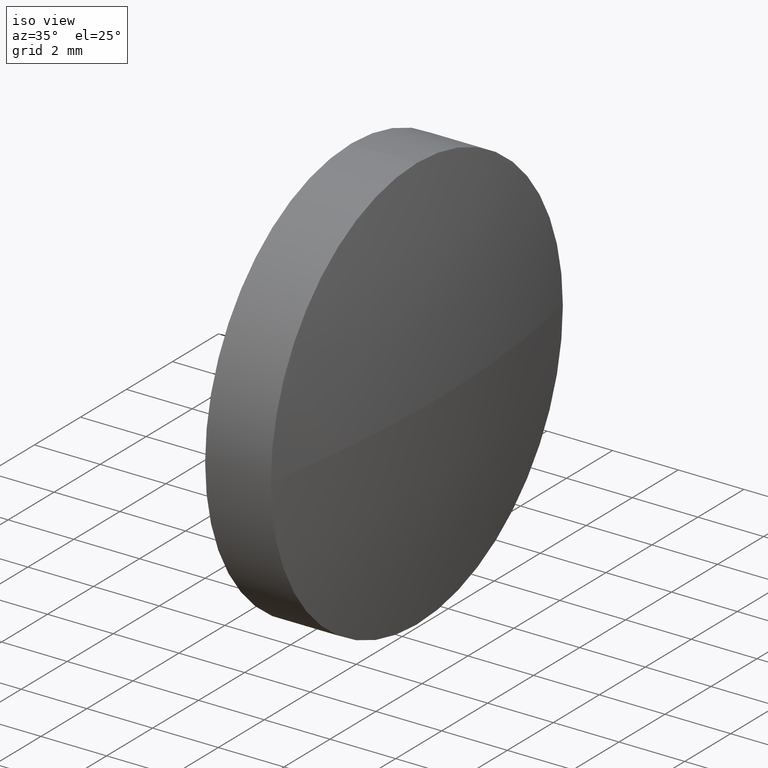
[diagram: clean part render]
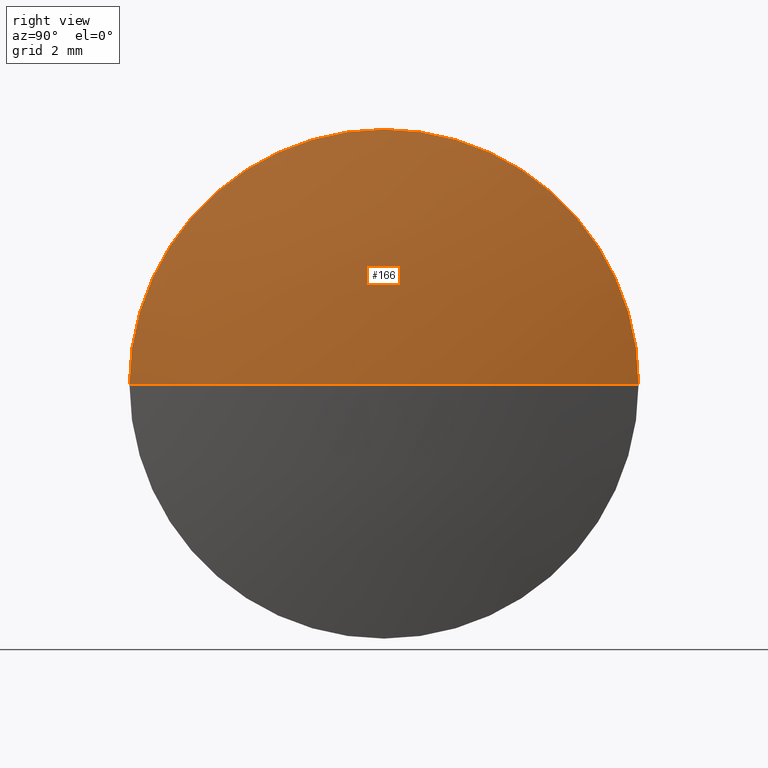
[diagram: tour spotlight — one face highlighted and labeled with its STEP entity id]
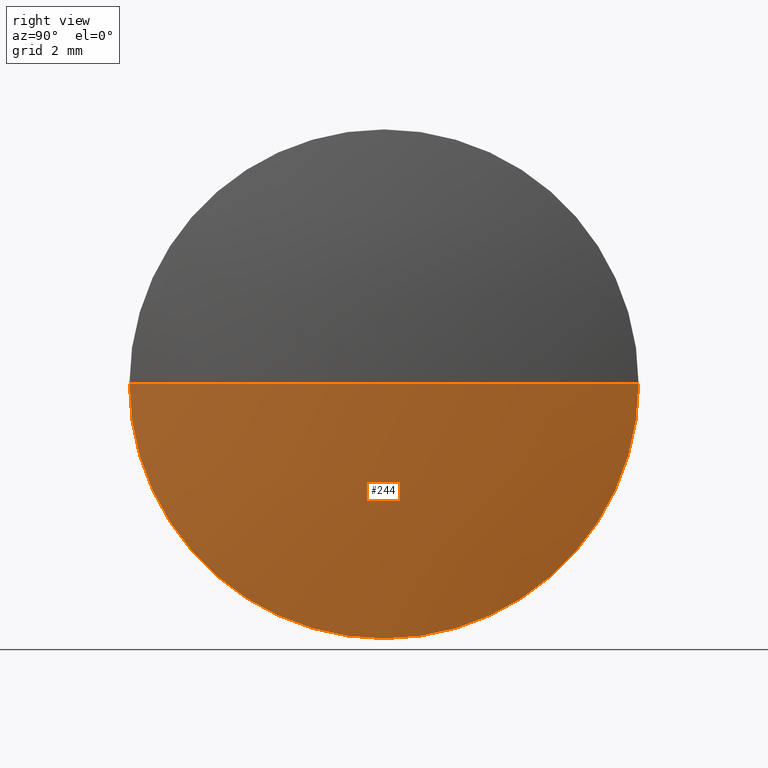
[diagram: tour spotlight — one face highlighted and labeled with its STEP entity id]
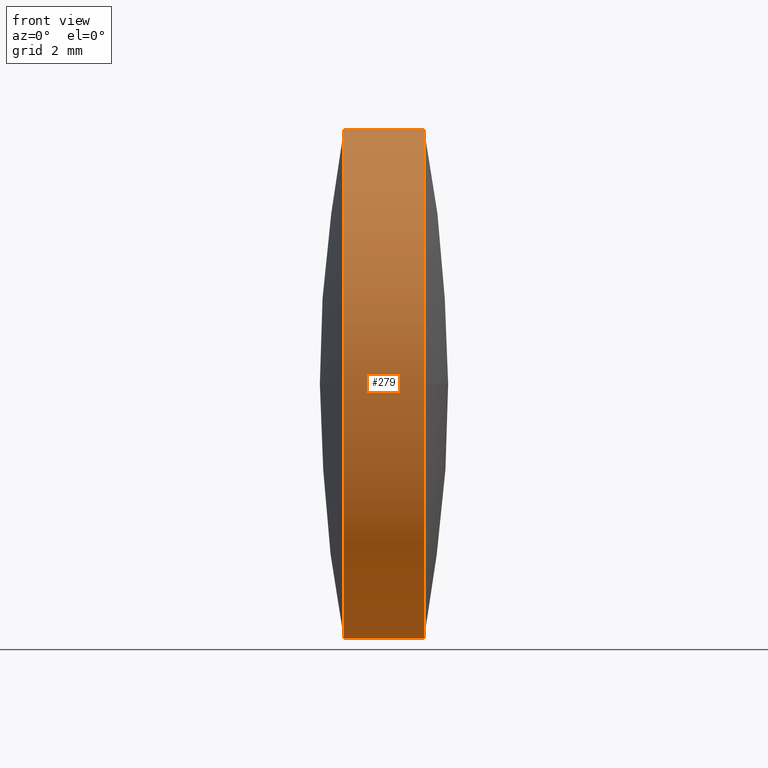
[diagram: tour spotlight — one face highlighted and labeled with its STEP entity id]
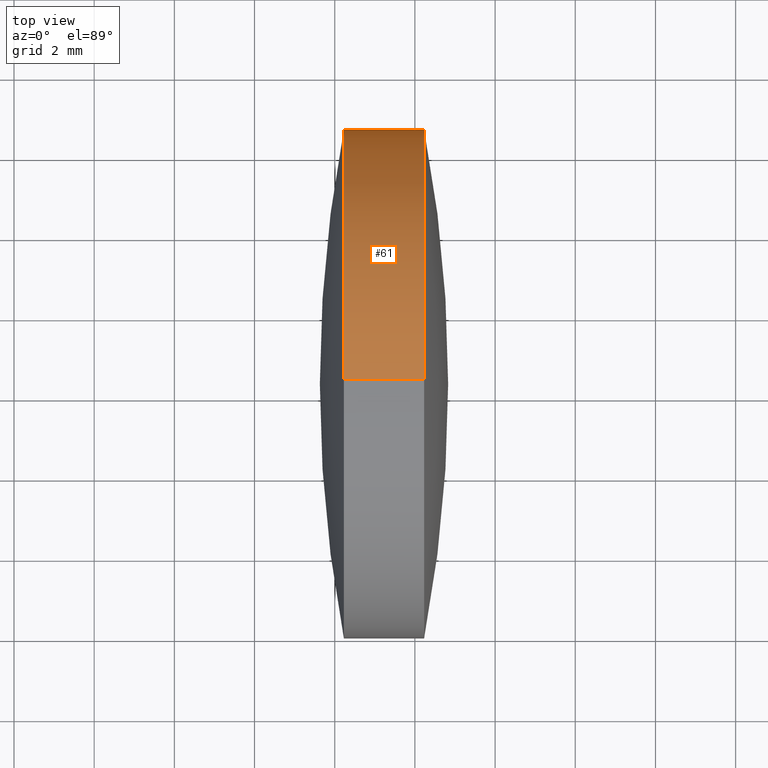
[diagram: tour spotlight — one face highlighted and labeled with its STEP entity id]
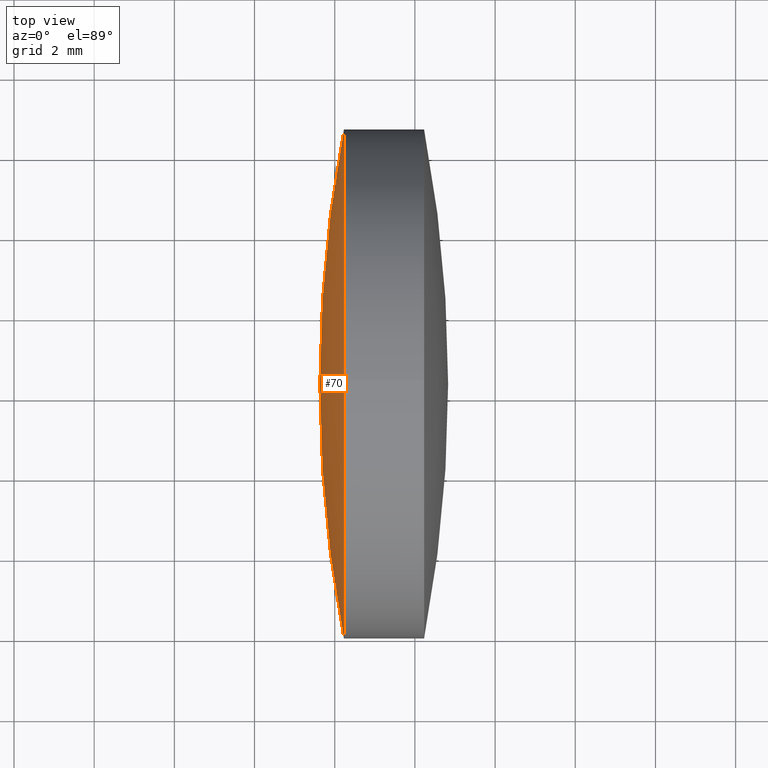
[diagram: tour spotlight — one face highlighted and labeled with its STEP entity id]
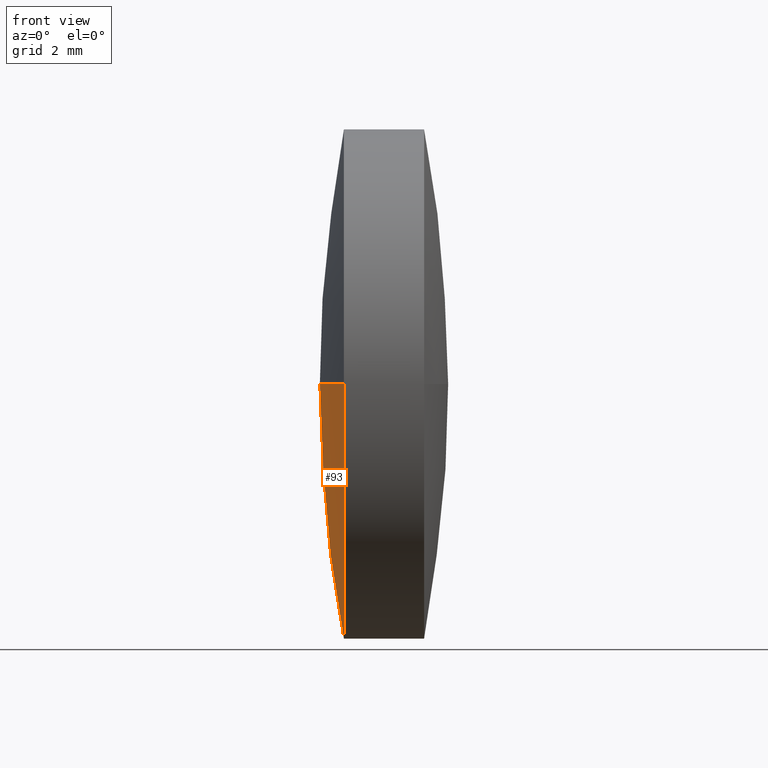
[diagram: tour spotlight — one face highlighted and labeled with its STEP entity id]
A machine part: a face-by-face anatomy tour. The part has 6 B-rep faces; the first image is the clean iso view, then the 6 largest visible faces are spotlighted one at a time (largest first), each with its STEP entity span.

Face 1 — right view, entity #166. In plain terms, the highlighted spherical surface has radius 33.905 mm.
Definition (entity closure, byte-faithful):
#9 = ORIENTED_EDGE ( 'NONE', *, *, #289, .F. ) ;
#17 = CIRCLE ( 'NONE', #52, 33.90496976629939500 ) ;
#27 = VERTEX_POINT ( 'NONE', #113 ) ;
#31 = EDGE_CURVE ( 'NONE', #219, #241, #183, .T. ) ;
#41 = AXIS2_PLACEMENT_3D ( 'NONE', #240, #268, #190 ) ;
#52 = AXIS2_PLACEMENT_3D ( 'NONE', #136, #86, #62 ) ;
#62 = DIRECTION ( 'NONE',  ( 0.0000000000000000000, -1.000000000000000000, -1.224646799147353000E-016 ) ) ;
#65 = DIRECTION ( 'NONE',  ( -1.000000000000000000, 0.0000000000000000000, 0.0000000000000000000 ) ) ;
#68 = CARTESIAN_POINT ( 'NONE',  ( 44.22913117304555200, 30.65805651159239200, 7.776507174585659600E-016 ) ) ;
#86 = DIRECTION ( 'NONE',  ( 0.0000000000000000000, -1.224646799147353200E-016, 1.000000000000000000 ) ) ;
#88 = CARTESIAN_POINT ( 'NONE',  ( 44.22913117304555200, 24.30805651159239000, 0.0000000000000000000 ) ) ;
#89 = CARTESIAN_POINT ( 'NONE',  ( 44.22913117304555200, 24.30805651159239000, 6.349999999999997900 ) ) ;
#90 = ORIENTED_EDGE ( 'NONE', *, *, #135, .T. ) ;
#113 = CARTESIAN_POINT ( 'NONE',  ( 44.82907917304555700, 24.30805651159241500, 0.0000000000000000000 ) ) ;
#127 = EDGE_LOOP ( 'NONE', ( #205, #90, #9, #246 ) ) ;
#135 = EDGE_CURVE ( 'NONE', #27, #201, #17, .T. ) ;
#136 = CARTESIAN_POINT ( 'NONE',  ( 10.92410940674616300, 24.30805651159241900, 0.0000000000000000000 ) ) ;
#144 = CIRCLE ( 'NONE', #203, 6.349999999999997900 ) ;
#155 = CIRCLE ( 'NONE', #299, 33.90496976629939500 ) ;
#166 = ADVANCED_FACE ( 'NONE', ( #290 ), #323, .T. ) ;
#183 = CIRCLE ( 'NONE', #41, 6.349999999999997900 ) ;
#190 = DIRECTION ( 'NONE',  ( 0.0000000000000000000, 0.0000000000000000000, 1.000000000000000000 ) ) ;
#201 = VERTEX_POINT ( 'NONE', #68 ) ;
#203 = AXIS2_PLACEMENT_3D ( 'NONE', #88, #248, #301 ) ;
#205 = ORIENTED_EDGE ( 'NONE', *, *, #343, .F. ) ;
#215 = CARTESIAN_POINT ( 'NONE',  ( 10.92410940674616300, 24.30805651159241900, 0.0000000000000000000 ) ) ;
#219 = VERTEX_POINT ( 'NONE', #303 ) ;
#240 = CARTESIAN_POINT ( 'NONE',  ( 44.22913117304555200, 24.30805651159239000, 0.0000000000000000000 ) ) ;
#241 = VERTEX_POINT ( 'NONE', #89 ) ;
#246 = ORIENTED_EDGE ( 'NONE', *, *, #31, .F. ) ;
#248 = DIRECTION ( 'NONE',  ( -1.000000000000000000, -0.0000000000000000000, -0.0000000000000000000 ) ) ;
#252 = CARTESIAN_POINT ( 'NONE',  ( 10.92410940674616300, 24.30805651159241900, 0.0000000000000000000 ) ) ;
#268 = DIRECTION ( 'NONE',  ( -1.000000000000000000, -0.0000000000000000000, -0.0000000000000000000 ) ) ;
#289 = EDGE_CURVE ( 'NONE', #241, #201, #144, .T. ) ;
#290 = FACE_OUTER_BOUND ( 'NONE', #127, .T. ) ;
#299 = AXIS2_PLACEMENT_3D ( 'NONE', #252, #304, #65 ) ;
#300 = DIRECTION ( 'NONE',  ( 0.0000000000000000000, 0.0000000000000000000, 1.000000000000000000 ) ) ;
#301 = DIRECTION ( 'NONE',  ( 0.0000000000000000000, 0.0000000000000000000, 1.000000000000000000 ) ) ;
#303 = CARTESIAN_POINT ( 'NONE',  ( 44.22913117304555200, 17.95805651159241700, 0.0000000000000000000 ) ) ;
#304 = DIRECTION ( 'NONE',  ( 0.0000000000000000000, 0.0000000000000000000, -1.000000000000000000 ) ) ;
#323 = SPHERICAL_SURFACE ( 'NONE', #328, 33.90496976629939500 ) ;
#328 = AXIS2_PLACEMENT_3D ( 'NONE', #215, #300, #334 ) ;
#334 = DIRECTION ( 'NONE',  ( 0.0000000000000000000, -1.000000000000000000, 0.0000000000000000000 ) ) ;
#343 = EDGE_CURVE ( 'NONE', #27, #219, #155, .T. ) ;

Face 2 — right view, entity #244. In plain terms, the highlighted spherical surface has radius 33.905 mm.
Definition (entity closure, byte-faithful):
#7 = DIRECTION ( 'NONE',  ( -1.000000000000000000, -0.0000000000000000000, -0.0000000000000000000 ) ) ;
#10 = FACE_OUTER_BOUND ( 'NONE', #42, .T. ) ;
#17 = CIRCLE ( 'NONE', #52, 33.90496976629939500 ) ;
#20 = ORIENTED_EDGE ( 'NONE', *, *, #343, .T. ) ;
#27 = VERTEX_POINT ( 'NONE', #113 ) ;
#42 = EDGE_LOOP ( 'NONE', ( #162, #20, #129, #184 ) ) ;
#52 = AXIS2_PLACEMENT_3D ( 'NONE', #136, #86, #62 ) ;
#62 = DIRECTION ( 'NONE',  ( 0.0000000000000000000, -1.000000000000000000, -1.224646799147353000E-016 ) ) ;
#65 = DIRECTION ( 'NONE',  ( -1.000000000000000000, 0.0000000000000000000, 0.0000000000000000000 ) ) ;
#68 = CARTESIAN_POINT ( 'NONE',  ( 44.22913117304555200, 30.65805651159239200, 7.776507174585659600E-016 ) ) ;
#80 = CIRCLE ( 'NONE', #192, 6.349999999999997900 ) ;
#86 = DIRECTION ( 'NONE',  ( 0.0000000000000000000, -1.224646799147353200E-016, 1.000000000000000000 ) ) ;
#96 = DIRECTION ( 'NONE',  ( 0.0000000000000000000, 0.0000000000000000000, 1.000000000000000000 ) ) ;
#108 = VERTEX_POINT ( 'NONE', #269 ) ;
#113 = CARTESIAN_POINT ( 'NONE',  ( 44.82907917304555700, 24.30805651159241500, 0.0000000000000000000 ) ) ;
#117 = DIRECTION ( 'NONE',  ( 0.0000000000000000000, 0.0000000000000000000, 1.000000000000000000 ) ) ;
#120 = AXIS2_PLACEMENT_3D ( 'NONE', #140, #168, #245 ) ;
#125 = AXIS2_PLACEMENT_3D ( 'NONE', #277, #117, #271 ) ;
#129 = ORIENTED_EDGE ( 'NONE', *, *, #311, .F. ) ;
#135 = EDGE_CURVE ( 'NONE', #27, #201, #17, .T. ) ;
#136 = CARTESIAN_POINT ( 'NONE',  ( 10.92410940674616300, 24.30805651159241900, 0.0000000000000000000 ) ) ;
#140 = CARTESIAN_POINT ( 'NONE',  ( 44.22913117304555200, 24.30805651159239000, 0.0000000000000000000 ) ) ;
#155 = CIRCLE ( 'NONE', #299, 33.90496976629939500 ) ;
#162 = ORIENTED_EDGE ( 'NONE', *, *, #135, .F. ) ;
#168 = DIRECTION ( 'NONE',  ( -1.000000000000000000, -0.0000000000000000000, -0.0000000000000000000 ) ) ;
#175 = CARTESIAN_POINT ( 'NONE',  ( 44.22913117304555200, 24.30805651159239000, 0.0000000000000000000 ) ) ;
#184 = ORIENTED_EDGE ( 'NONE', *, *, #280, .F. ) ;
#192 = AXIS2_PLACEMENT_3D ( 'NONE', #175, #7, #96 ) ;
#201 = VERTEX_POINT ( 'NONE', #68 ) ;
#211 = CIRCLE ( 'NONE', #120, 6.349999999999997900 ) ;
#219 = VERTEX_POINT ( 'NONE', #303 ) ;
#244 = ADVANCED_FACE ( 'NONE', ( #10 ), #292, .T. ) ;
#245 = DIRECTION ( 'NONE',  ( 0.0000000000000000000, 0.0000000000000000000, 1.000000000000000000 ) ) ;
#252 = CARTESIAN_POINT ( 'NONE',  ( 10.92410940674616300, 24.30805651159241900, 0.0000000000000000000 ) ) ;
#269 = CARTESIAN_POINT ( 'NONE',  ( 44.22913117304555200, 24.30805651159239000, -6.349999999999997900 ) ) ;
#271 = DIRECTION ( 'NONE',  ( 0.0000000000000000000, -1.000000000000000000, 0.0000000000000000000 ) ) ;
#277 = CARTESIAN_POINT ( 'NONE',  ( 10.92410940674616300, 24.30805651159241900, 0.0000000000000000000 ) ) ;
#280 = EDGE_CURVE ( 'NONE', #201, #108, #211, .T. ) ;
#292 = SPHERICAL_SURFACE ( 'NONE', #125, 33.90496976629939500 ) ;
#299 = AXIS2_PLACEMENT_3D ( 'NONE', #252, #304, #65 ) ;
#303 = CARTESIAN_POINT ( 'NONE',  ( 44.22913117304555200, 17.95805651159241700, 0.0000000000000000000 ) ) ;
#304 = DIRECTION ( 'NONE',  ( 0.0000000000000000000, 0.0000000000000000000, -1.000000000000000000 ) ) ;
#311 = EDGE_CURVE ( 'NONE', #108, #219, #80, .T. ) ;
#343 = EDGE_CURVE ( 'NONE', #27, #219, #155, .T. ) ;

Face 3 — front view, entity #279. In plain terms, the highlighted cylindrical surface (partial cylindrical patch) has radius 6.35 mm, axis along (-1, -0, -0).
Definition (entity closure, byte-faithful):
#2 = DIRECTION ( 'NONE',  ( -1.000000000000000000, -0.0000000000000000000, -0.0000000000000000000 ) ) ;
#4 = CARTESIAN_POINT ( 'NONE',  ( 42.22906260161698100, 24.30805651159239000, -6.349999999999997900 ) ) ;
#5 = EDGE_CURVE ( 'NONE', #108, #230, #272, .T. ) ;
#7 = DIRECTION ( 'NONE',  ( -1.000000000000000000, -0.0000000000000000000, -0.0000000000000000000 ) ) ;
#8 = CARTESIAN_POINT ( 'NONE',  ( 42.22906260161698100, 24.30805651159239000, 6.349999999999997900 ) ) ;
#11 = DIRECTION ( 'NONE',  ( -1.000000000000000000, -0.0000000000000000000, -0.0000000000000000000 ) ) ;
#24 = ORIENTED_EDGE ( 'NONE', *, *, #311, .T. ) ;
#25 = CIRCLE ( 'NONE', #260, 6.349999999999997900 ) ;
#31 = EDGE_CURVE ( 'NONE', #219, #241, #183, .T. ) ;
#36 = CARTESIAN_POINT ( 'NONE',  ( 42.22906260161698100, 24.30805651159239000, 0.0000000000000000000 ) ) ;
#41 = AXIS2_PLACEMENT_3D ( 'NONE', #240, #268, #190 ) ;
#47 = ORIENTED_EDGE ( 'NONE', *, *, #5, .F. ) ;
#57 = ORIENTED_EDGE ( 'NONE', *, *, #31, .T. ) ;
#80 = CIRCLE ( 'NONE', #192, 6.349999999999997900 ) ;
#81 = CARTESIAN_POINT ( 'NONE',  ( 39.65270067541857900, 24.30805651159239000, -6.349999999999997900 ) ) ;
#85 = CIRCLE ( 'NONE', #231, 6.349999999999997900 ) ;
#89 = CARTESIAN_POINT ( 'NONE',  ( 44.22913117304555200, 24.30805651159239000, 6.349999999999997900 ) ) ;
#94 = DIRECTION ( 'NONE',  ( 0.0000000000000000000, 0.0000000000000000000, 1.000000000000000000 ) ) ;
#96 = DIRECTION ( 'NONE',  ( 0.0000000000000000000, 0.0000000000000000000, 1.000000000000000000 ) ) ;
#100 = VECTOR ( 'NONE', #141, 1000.000000000000000 ) ;
#108 = VERTEX_POINT ( 'NONE', #269 ) ;
#115 = CARTESIAN_POINT ( 'NONE',  ( 39.65270067541857900, 24.30805651159239000, 6.349999999999997900 ) ) ;
#139 = CARTESIAN_POINT ( 'NONE',  ( 42.22906260161698100, 17.95805651159238200, -7.776507174585672400E-016 ) ) ;
#141 = DIRECTION ( 'NONE',  ( -1.000000000000000000, -0.0000000000000000000, -0.0000000000000000000 ) ) ;
#142 = ORIENTED_EDGE ( 'NONE', *, *, #161, .F. ) ;
#156 = AXIS2_PLACEMENT_3D ( 'NONE', #217, #173, #330 ) ;
#161 = EDGE_CURVE ( 'NONE', #182, #210, #85, .T. ) ;
#171 = CARTESIAN_POINT ( 'NONE',  ( 42.22906260161698100, 24.30805651159239000, 0.0000000000000000000 ) ) ;
#173 = DIRECTION ( 'NONE',  ( -1.000000000000000000, -0.0000000000000000000, -0.0000000000000000000 ) ) ;
#175 = CARTESIAN_POINT ( 'NONE',  ( 44.22913117304555200, 24.30805651159239000, 0.0000000000000000000 ) ) ;
#176 = EDGE_LOOP ( 'NONE', ( #47, #24, #57, #342, #142, #278 ) ) ;
#179 = LINE ( 'NONE', #115, #100 ) ;
#181 = EDGE_CURVE ( 'NONE', #241, #210, #179, .T. ) ;
#182 = VERTEX_POINT ( 'NONE', #139 ) ;
#183 = CIRCLE ( 'NONE', #41, 6.349999999999997900 ) ;
#190 = DIRECTION ( 'NONE',  ( 0.0000000000000000000, 0.0000000000000000000, 1.000000000000000000 ) ) ;
#192 = AXIS2_PLACEMENT_3D ( 'NONE', #175, #7, #96 ) ;
#210 = VERTEX_POINT ( 'NONE', #8 ) ;
#217 = CARTESIAN_POINT ( 'NONE',  ( 39.65270067541857900, 24.30805651159239000, 0.0000000000000000000 ) ) ;
#219 = VERTEX_POINT ( 'NONE', #303 ) ;
#230 = VERTEX_POINT ( 'NONE', #4 ) ;
#231 = AXIS2_PLACEMENT_3D ( 'NONE', #171, #247, #275 ) ;
#240 = CARTESIAN_POINT ( 'NONE',  ( 44.22913117304555200, 24.30805651159239000, 0.0000000000000000000 ) ) ;
#241 = VERTEX_POINT ( 'NONE', #89 ) ;
#247 = DIRECTION ( 'NONE',  ( -1.000000000000000000, -0.0000000000000000000, -0.0000000000000000000 ) ) ;
#260 = AXIS2_PLACEMENT_3D ( 'NONE', #36, #11, #94 ) ;
#268 = DIRECTION ( 'NONE',  ( -1.000000000000000000, -0.0000000000000000000, -0.0000000000000000000 ) ) ;
#269 = CARTESIAN_POINT ( 'NONE',  ( 44.22913117304555200, 24.30805651159239000, -6.349999999999997900 ) ) ;
#272 = LINE ( 'NONE', #81, #312 ) ;
#275 = DIRECTION ( 'NONE',  ( 0.0000000000000000000, 0.0000000000000000000, 1.000000000000000000 ) ) ;
#278 = ORIENTED_EDGE ( 'NONE', *, *, #318, .F. ) ;
#279 = ADVANCED_FACE ( 'NONE', ( #281 ), #287, .T. ) ;
#281 = FACE_OUTER_BOUND ( 'NONE', #176, .T. ) ;
#287 = CYLINDRICAL_SURFACE ( 'NONE', #156, 6.349999999999997900 ) ;
#303 = CARTESIAN_POINT ( 'NONE',  ( 44.22913117304555200, 17.95805651159241700, 0.0000000000000000000 ) ) ;
#311 = EDGE_CURVE ( 'NONE', #108, #219, #80, .T. ) ;
#312 = VECTOR ( 'NONE', #2, 1000.000000000000000 ) ;
#318 = EDGE_CURVE ( 'NONE', #230, #182, #25, .T. ) ;
#330 = DIRECTION ( 'NONE',  ( 0.0000000000000000000, 0.0000000000000000000, 1.000000000000000000 ) ) ;
#342 = ORIENTED_EDGE ( 'NONE', *, *, #181, .T. ) ;

Face 4 — top view, entity #61. In plain terms, the highlighted cylindrical surface (partial cylindrical patch) has radius 6.35 mm, axis along (-1, -0, -0).
Definition (entity closure, byte-faithful):
#2 = DIRECTION ( 'NONE',  ( -1.000000000000000000, -0.0000000000000000000, -0.0000000000000000000 ) ) ;
#4 = CARTESIAN_POINT ( 'NONE',  ( 42.22906260161698100, 24.30805651159239000, -6.349999999999997900 ) ) ;
#5 = EDGE_CURVE ( 'NONE', #108, #230, #272, .T. ) ;
#8 = CARTESIAN_POINT ( 'NONE',  ( 42.22906260161698100, 24.30805651159239000, 6.349999999999997900 ) ) ;
#22 = CIRCLE ( 'NONE', #119, 6.349999999999997900 ) ;
#30 = ORIENTED_EDGE ( 'NONE', *, *, #289, .T. ) ;
#53 = ORIENTED_EDGE ( 'NONE', *, *, #181, .F. ) ;
#58 = DIRECTION ( 'NONE',  ( -1.000000000000000000, -0.0000000000000000000, -0.0000000000000000000 ) ) ;
#61 = ADVANCED_FACE ( 'NONE', ( #232 ), #105, .T. ) ;
#68 = CARTESIAN_POINT ( 'NONE',  ( 44.22913117304555200, 30.65805651159239200, 7.776507174585659600E-016 ) ) ;
#81 = CARTESIAN_POINT ( 'NONE',  ( 39.65270067541857900, 24.30805651159239000, -6.349999999999997900 ) ) ;
#83 = AXIS2_PLACEMENT_3D ( 'NONE', #167, #111, #273 ) ;
#88 = CARTESIAN_POINT ( 'NONE',  ( 44.22913117304555200, 24.30805651159239000, 0.0000000000000000000 ) ) ;
#89 = CARTESIAN_POINT ( 'NONE',  ( 44.22913117304555200, 24.30805651159239000, 6.349999999999997900 ) ) ;
#92 = DIRECTION ( 'NONE',  ( 0.0000000000000000000, 0.0000000000000000000, 1.000000000000000000 ) ) ;
#99 = ORIENTED_EDGE ( 'NONE', *, *, #280, .T. ) ;
#100 = VECTOR ( 'NONE', #141, 1000.000000000000000 ) ;
#104 = ORIENTED_EDGE ( 'NONE', *, *, #5, .T. ) ;
#105 = CYLINDRICAL_SURFACE ( 'NONE', #213, 6.349999999999997900 ) ;
#108 = VERTEX_POINT ( 'NONE', #269 ) ;
#111 = DIRECTION ( 'NONE',  ( -1.000000000000000000, -0.0000000000000000000, -0.0000000000000000000 ) ) ;
#112 = ORIENTED_EDGE ( 'NONE', *, *, #187, .F. ) ;
#115 = CARTESIAN_POINT ( 'NONE',  ( 39.65270067541857900, 24.30805651159239000, 6.349999999999997900 ) ) ;
#119 = AXIS2_PLACEMENT_3D ( 'NONE', #249, #195, #92 ) ;
#120 = AXIS2_PLACEMENT_3D ( 'NONE', #140, #168, #245 ) ;
#133 = CARTESIAN_POINT ( 'NONE',  ( 39.65270067541857900, 24.30805651159239000, 0.0000000000000000000 ) ) ;
#140 = CARTESIAN_POINT ( 'NONE',  ( 44.22913117304555200, 24.30805651159239000, 0.0000000000000000000 ) ) ;
#141 = DIRECTION ( 'NONE',  ( -1.000000000000000000, -0.0000000000000000000, -0.0000000000000000000 ) ) ;
#144 = CIRCLE ( 'NONE', #203, 6.349999999999997900 ) ;
#147 = EDGE_CURVE ( 'NONE', #188, #230, #159, .T. ) ;
#159 = CIRCLE ( 'NONE', #83, 6.349999999999997900 ) ;
#167 = CARTESIAN_POINT ( 'NONE',  ( 42.22906260161698100, 24.30805651159239000, 0.0000000000000000000 ) ) ;
#168 = DIRECTION ( 'NONE',  ( -1.000000000000000000, -0.0000000000000000000, -0.0000000000000000000 ) ) ;
#179 = LINE ( 'NONE', #115, #100 ) ;
#181 = EDGE_CURVE ( 'NONE', #241, #210, #179, .T. ) ;
#187 = EDGE_CURVE ( 'NONE', #210, #188, #22, .T. ) ;
#188 = VERTEX_POINT ( 'NONE', #218 ) ;
#195 = DIRECTION ( 'NONE',  ( -1.000000000000000000, -0.0000000000000000000, -0.0000000000000000000 ) ) ;
#201 = VERTEX_POINT ( 'NONE', #68 ) ;
#203 = AXIS2_PLACEMENT_3D ( 'NONE', #88, #248, #301 ) ;
#210 = VERTEX_POINT ( 'NONE', #8 ) ;
#211 = CIRCLE ( 'NONE', #120, 6.349999999999997900 ) ;
#213 = AXIS2_PLACEMENT_3D ( 'NONE', #133, #58, #327 ) ;
#218 = CARTESIAN_POINT ( 'NONE',  ( 42.22906260161698100, 30.65805651159237400, 0.0000000000000000000 ) ) ;
#230 = VERTEX_POINT ( 'NONE', #4 ) ;
#232 = FACE_OUTER_BOUND ( 'NONE', #258, .T. ) ;
#241 = VERTEX_POINT ( 'NONE', #89 ) ;
#245 = DIRECTION ( 'NONE',  ( 0.0000000000000000000, 0.0000000000000000000, 1.000000000000000000 ) ) ;
#248 = DIRECTION ( 'NONE',  ( -1.000000000000000000, -0.0000000000000000000, -0.0000000000000000000 ) ) ;
#249 = CARTESIAN_POINT ( 'NONE',  ( 42.22906260161698100, 24.30805651159239000, 0.0000000000000000000 ) ) ;
#258 = EDGE_LOOP ( 'NONE', ( #99, #104, #325, #112, #53, #30 ) ) ;
#269 = CARTESIAN_POINT ( 'NONE',  ( 44.22913117304555200, 24.30805651159239000, -6.349999999999997900 ) ) ;
#272 = LINE ( 'NONE', #81, #312 ) ;
#273 = DIRECTION ( 'NONE',  ( 0.0000000000000000000, 0.0000000000000000000, 1.000000000000000000 ) ) ;
#280 = EDGE_CURVE ( 'NONE', #201, #108, #211, .T. ) ;
#289 = EDGE_CURVE ( 'NONE', #241, #201, #144, .T. ) ;
#301 = DIRECTION ( 'NONE',  ( 0.0000000000000000000, 0.0000000000000000000, 1.000000000000000000 ) ) ;
#312 = VECTOR ( 'NONE', #2, 1000.000000000000000 ) ;
#325 = ORIENTED_EDGE ( 'NONE', *, *, #147, .F. ) ;
#327 = DIRECTION ( 'NONE',  ( 0.0000000000000000000, 0.0000000000000000000, 1.000000000000000000 ) ) ;

Face 5 — top view, entity #70. In plain terms, the highlighted spherical surface has radius 33.905 mm.
Definition (entity closure, byte-faithful):
#1 = AXIS2_PLACEMENT_3D ( 'NONE', #329, #265, #82 ) ;
#8 = CARTESIAN_POINT ( 'NONE',  ( 42.22906260161698100, 24.30805651159239000, 6.349999999999997900 ) ) ;
#15 = EDGE_CURVE ( 'NONE', #182, #170, #63, .T. ) ;
#22 = CIRCLE ( 'NONE', #119, 6.349999999999997900 ) ;
#28 = DIRECTION ( 'NONE',  ( 0.0000000000000000000, 1.000000000000000000, 1.224646799147353000E-016 ) ) ;
#32 = DIRECTION ( 'NONE',  ( 1.000000000000000000, 0.0000000000000000000, 0.0000000000000000000 ) ) ;
#34 = CARTESIAN_POINT ( 'NONE',  ( 75.53408436791684700, 24.30805651159236500, 0.0000000000000000000 ) ) ;
#50 = ORIENTED_EDGE ( 'NONE', *, *, #64, .T. ) ;
#54 = FACE_OUTER_BOUND ( 'NONE', #309, .T. ) ;
#63 = CIRCLE ( 'NONE', #102, 33.90496976629986400 ) ;
#64 = EDGE_CURVE ( 'NONE', #188, #170, #320, .T. ) ;
#70 = ADVANCED_FACE ( 'NONE', ( #54 ), #261, .T. ) ;
#79 = ORIENTED_EDGE ( 'NONE', *, *, #187, .T. ) ;
#82 = DIRECTION ( 'NONE',  ( 0.0000000000000000000, 1.000000000000000000, 0.0000000000000000000 ) ) ;
#84 = DIRECTION ( 'NONE',  ( 0.0000000000000000000, 1.224646799147353200E-016, -1.000000000000000000 ) ) ;
#85 = CIRCLE ( 'NONE', #231, 6.349999999999997900 ) ;
#92 = DIRECTION ( 'NONE',  ( 0.0000000000000000000, 0.0000000000000000000, 1.000000000000000000 ) ) ;
#102 = AXIS2_PLACEMENT_3D ( 'NONE', #137, #84, #28 ) ;
#119 = AXIS2_PLACEMENT_3D ( 'NONE', #249, #195, #92 ) ;
#121 = CARTESIAN_POINT ( 'NONE',  ( 41.62911460161699000, 24.30805651159236900, 0.0000000000000000000 ) ) ;
#137 = CARTESIAN_POINT ( 'NONE',  ( 75.53408436791684700, 24.30805651159236500, 0.0000000000000000000 ) ) ;
#139 = CARTESIAN_POINT ( 'NONE',  ( 42.22906260161698100, 17.95805651159238200, -7.776507174585672400E-016 ) ) ;
#161 = EDGE_CURVE ( 'NONE', #182, #210, #85, .T. ) ;
#170 = VERTEX_POINT ( 'NONE', #121 ) ;
#171 = CARTESIAN_POINT ( 'NONE',  ( 42.22906260161698100, 24.30805651159239000, 0.0000000000000000000 ) ) ;
#182 = VERTEX_POINT ( 'NONE', #139 ) ;
#187 = EDGE_CURVE ( 'NONE', #210, #188, #22, .T. ) ;
#188 = VERTEX_POINT ( 'NONE', #218 ) ;
#191 = DIRECTION ( 'NONE',  ( -0.0000000000000000000, 0.0000000000000000000, 1.000000000000000000 ) ) ;
#195 = DIRECTION ( 'NONE',  ( -1.000000000000000000, -0.0000000000000000000, -0.0000000000000000000 ) ) ;
#199 = AXIS2_PLACEMENT_3D ( 'NONE', #34, #191, #32 ) ;
#210 = VERTEX_POINT ( 'NONE', #8 ) ;
#218 = CARTESIAN_POINT ( 'NONE',  ( 42.22906260161698100, 30.65805651159237400, 0.0000000000000000000 ) ) ;
#231 = AXIS2_PLACEMENT_3D ( 'NONE', #171, #247, #275 ) ;
#247 = DIRECTION ( 'NONE',  ( -1.000000000000000000, -0.0000000000000000000, -0.0000000000000000000 ) ) ;
#249 = CARTESIAN_POINT ( 'NONE',  ( 42.22906260161698100, 24.30805651159239000, 0.0000000000000000000 ) ) ;
#253 = ORIENTED_EDGE ( 'NONE', *, *, #15, .F. ) ;
#261 = SPHERICAL_SURFACE ( 'NONE', #1, 33.90496976629986400 ) ;
#265 = DIRECTION ( 'NONE',  ( -0.0000000000000000000, 0.0000000000000000000, -1.000000000000000000 ) ) ;
#275 = DIRECTION ( 'NONE',  ( 0.0000000000000000000, 0.0000000000000000000, 1.000000000000000000 ) ) ;
#309 = EDGE_LOOP ( 'NONE', ( #253, #336, #79, #50 ) ) ;
#320 = CIRCLE ( 'NONE', #199, 33.90496976629986400 ) ;
#329 = CARTESIAN_POINT ( 'NONE',  ( 75.53408436791684700, 24.30805651159236500, 0.0000000000000000000 ) ) ;
#336 = ORIENTED_EDGE ( 'NONE', *, *, #161, .T. ) ;

Face 6 — front view, entity #93. In plain terms, the highlighted spherical surface has radius 33.905 mm.
Definition (entity closure, byte-faithful):
#3 = CARTESIAN_POINT ( 'NONE',  ( 75.53408436791684700, 24.30805651159236500, 0.0000000000000000000 ) ) ;
#4 = CARTESIAN_POINT ( 'NONE',  ( 42.22906260161698100, 24.30805651159239000, -6.349999999999997900 ) ) ;
#11 = DIRECTION ( 'NONE',  ( -1.000000000000000000, -0.0000000000000000000, -0.0000000000000000000 ) ) ;
#15 = EDGE_CURVE ( 'NONE', #182, #170, #63, .T. ) ;
#25 = CIRCLE ( 'NONE', #260, 6.349999999999997900 ) ;
#28 = DIRECTION ( 'NONE',  ( 0.0000000000000000000, 1.000000000000000000, 1.224646799147353000E-016 ) ) ;
#32 = DIRECTION ( 'NONE',  ( 1.000000000000000000, 0.0000000000000000000, 0.0000000000000000000 ) ) ;
#34 = CARTESIAN_POINT ( 'NONE',  ( 75.53408436791684700, 24.30805651159236500, 0.0000000000000000000 ) ) ;
#36 = CARTESIAN_POINT ( 'NONE',  ( 42.22906260161698100, 24.30805651159239000, 0.0000000000000000000 ) ) ;
#48 = SPHERICAL_SURFACE ( 'NONE', #337, 33.90496976629986400 ) ;
#63 = CIRCLE ( 'NONE', #102, 33.90496976629986400 ) ;
#64 = EDGE_CURVE ( 'NONE', #188, #170, #320, .T. ) ;
#83 = AXIS2_PLACEMENT_3D ( 'NONE', #167, #111, #273 ) ;
#84 = DIRECTION ( 'NONE',  ( 0.0000000000000000000, 1.224646799147353200E-016, -1.000000000000000000 ) ) ;
#93 = ADVANCED_FACE ( 'NONE', ( #163 ), #48, .T. ) ;
#94 = DIRECTION ( 'NONE',  ( 0.0000000000000000000, 0.0000000000000000000, 1.000000000000000000 ) ) ;
#102 = AXIS2_PLACEMENT_3D ( 'NONE', #137, #84, #28 ) ;
#111 = DIRECTION ( 'NONE',  ( -1.000000000000000000, -0.0000000000000000000, -0.0000000000000000000 ) ) ;
#121 = CARTESIAN_POINT ( 'NONE',  ( 41.62911460161699000, 24.30805651159236900, 0.0000000000000000000 ) ) ;
#137 = CARTESIAN_POINT ( 'NONE',  ( 75.53408436791684700, 24.30805651159236500, 0.0000000000000000000 ) ) ;
#139 = CARTESIAN_POINT ( 'NONE',  ( 42.22906260161698100, 17.95805651159238200, -7.776507174585672400E-016 ) ) ;
#147 = EDGE_CURVE ( 'NONE', #188, #230, #159, .T. ) ;
#159 = CIRCLE ( 'NONE', #83, 6.349999999999997900 ) ;
#163 = FACE_OUTER_BOUND ( 'NONE', #264, .T. ) ;
#167 = CARTESIAN_POINT ( 'NONE',  ( 42.22906260161698100, 24.30805651159239000, 0.0000000000000000000 ) ) ;
#170 = VERTEX_POINT ( 'NONE', #121 ) ;
#182 = VERTEX_POINT ( 'NONE', #139 ) ;
#188 = VERTEX_POINT ( 'NONE', #218 ) ;
#191 = DIRECTION ( 'NONE',  ( -0.0000000000000000000, 0.0000000000000000000, 1.000000000000000000 ) ) ;
#199 = AXIS2_PLACEMENT_3D ( 'NONE', #34, #191, #32 ) ;
#214 = DIRECTION ( 'NONE',  ( 0.0000000000000000000, 1.000000000000000000, 0.0000000000000000000 ) ) ;
#218 = CARTESIAN_POINT ( 'NONE',  ( 42.22906260161698100, 30.65805651159237400, 0.0000000000000000000 ) ) ;
#230 = VERTEX_POINT ( 'NONE', #4 ) ;
#260 = AXIS2_PLACEMENT_3D ( 'NONE', #36, #11, #94 ) ;
#264 = EDGE_LOOP ( 'NONE', ( #316, #345, #291, #270 ) ) ;
#270 = ORIENTED_EDGE ( 'NONE', *, *, #64, .F. ) ;
#273 = DIRECTION ( 'NONE',  ( 0.0000000000000000000, 0.0000000000000000000, 1.000000000000000000 ) ) ;
#291 = ORIENTED_EDGE ( 'NONE', *, *, #15, .T. ) ;
#316 = ORIENTED_EDGE ( 'NONE', *, *, #147, .T. ) ;
#318 = EDGE_CURVE ( 'NONE', #230, #182, #25, .T. ) ;
#320 = CIRCLE ( 'NONE', #199, 33.90496976629986400 ) ;
#331 = DIRECTION ( 'NONE',  ( -0.0000000000000000000, 0.0000000000000000000, -1.000000000000000000 ) ) ;
#337 = AXIS2_PLACEMENT_3D ( 'NONE', #3, #331, #214 ) ;
#345 = ORIENTED_EDGE ( 'NONE', *, *, #318, .T. ) ;